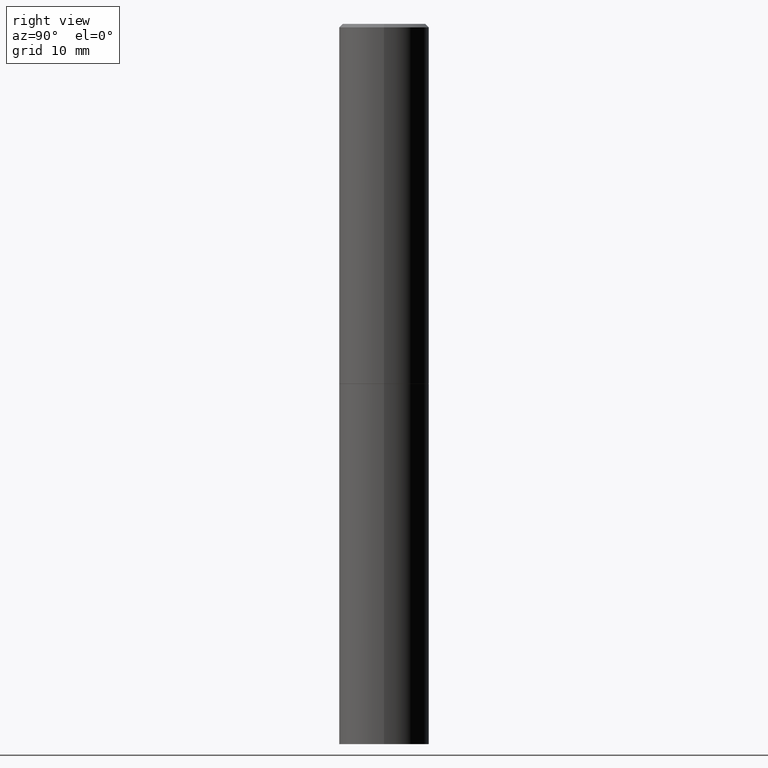
[diagram: clean part render]
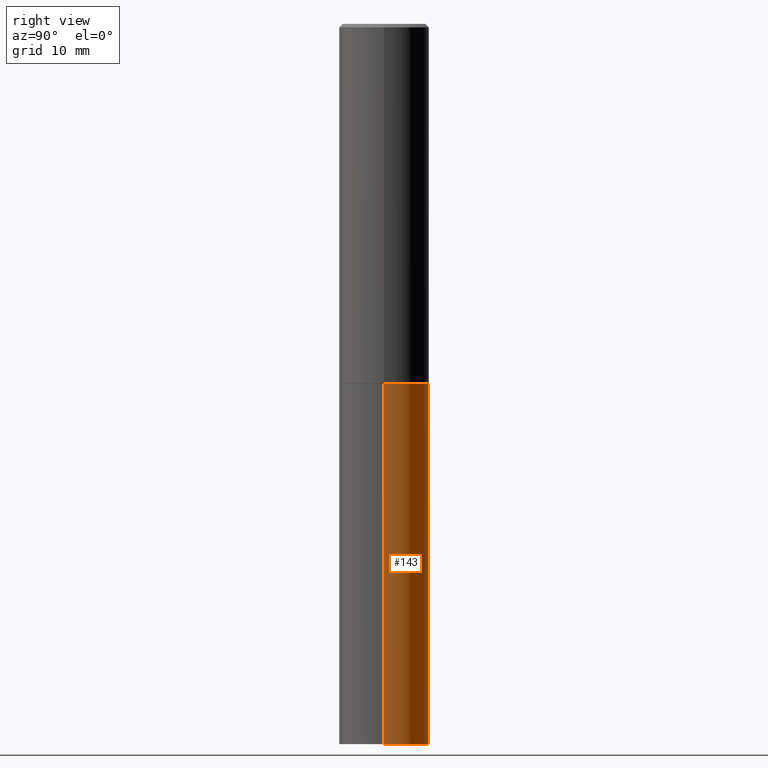
[diagram: same view with one face highlighted and labeled with its STEP entity id]
A machine part, right view. The second image highlights one B-rep face of the part: STEP entity #143.
In plain terms, the highlighted cylindrical surface (partial cylindrical patch) has radius 6.35 mm, axis along (-0, 0, 1).
Its self-contained STEP definition (entity closure, byte-faithful):
#36 = DIRECTION ( 'NONE',  ( 1.000000000000000000, -6.982962677686270655E-15, 0.000000000000000000 ) ) ;
#47 = EDGE_CURVE ( 'NONE', #229, #160, #51, .T. ) ;
#51 = LINE ( 'NONE', #159, #122 ) ;
#61 = LINE ( 'NONE', #210, #140 ) ;
#78 = ORIENTED_EDGE ( 'NONE', *, *, #120, .F. ) ;
#86 = CARTESIAN_POINT ( 'NONE',  ( 9.781875224740546387E-29, -1.396592535537258233E-14, -4.000000000000000000 ) ) ;
#99 = AXIS2_PLACEMENT_3D ( 'NONE', #117, #366, #167 ) ;
#100 = EDGE_LOOP ( 'NONE', ( #351, #235, #78, #152 ) ) ;
#116 = CARTESIAN_POINT ( 'NONE',  ( 0.2500000000000000000, -1.571166602479415059E-14, -4.000000000000000000 ) ) ;
#117 = CARTESIAN_POINT ( 'NONE',  ( 4.890937612370273194E-29, -6.982962677686291165E-15, -2.000000000000000000 ) ) ;
#120 = EDGE_CURVE ( 'NONE', #160, #278, #176, .T. ) ;
#122 = VECTOR ( 'NONE', #259, 39.37007874015748143 ) ;
#132 = EDGE_CURVE ( 'NONE', #229, #346, #230, .T. ) ;
#134 = AXIS2_PLACEMENT_3D ( 'NONE', #86, #276, #36 ) ;
#138 = DIRECTION ( 'NONE',  ( -2.445468806185136597E-29, 3.491481338843145583E-15, 1.000000000000000000 ) ) ;
#140 = VECTOR ( 'NONE', #328, 39.37007874015748143 ) ;
#143 = ADVANCED_FACE ( 'NONE', ( #334 ), #145, .T. ) ;
#145 = CYLINDRICAL_SURFACE ( 'NONE', #265, 0.2500000000000000000 ) ;
#152 = ORIENTED_EDGE ( 'NONE', *, *, #47, .F. ) ;
#159 = CARTESIAN_POINT ( 'NONE',  ( 0.2500000000000000000, -1.745740669421566678E-15, 1.219044193948983948E-29 ) ) ;
#160 = VERTEX_POINT ( 'NONE', #359 ) ;
#167 = DIRECTION ( 'NONE',  ( 1.000000000000000000, -6.982962677686266711E-15, 0.000000000000000000 ) ) ;
#174 = DIRECTION ( 'NONE',  ( 1.000000000000000000, -6.982962677686266711E-15, 4.876176775795935793E-29 ) ) ;
#176 = CIRCLE ( 'NONE', #99, 0.2500000000000000000 ) ;
#196 = CARTESIAN_POINT ( 'NONE',  ( 0.000000000000000000, 0.000000000000000000, 0.000000000000000000 ) ) ;
#210 = CARTESIAN_POINT ( 'NONE',  ( -0.2500000000000000000, 1.776356839400250465E-15, -1.229733772563726445E-29 ) ) ;
#229 = VERTEX_POINT ( 'NONE', #116 ) ;
#230 = CIRCLE ( 'NONE', #134, 0.2500000000000000000 ) ;
#235 = ORIENTED_EDGE ( 'NONE', *, *, #318, .T. ) ;
#242 = CARTESIAN_POINT ( 'NONE',  ( -0.2500000000000000000, -8.698087177129185889E-15, -2.000000000000000000 ) ) ;
#259 = DIRECTION ( 'NONE',  ( -2.445468806185136877E-29, 3.491481338843145188E-15, 1.000000000000000000 ) ) ;
#265 = AXIS2_PLACEMENT_3D ( 'NONE', #196, #138, #174 ) ;
#276 = DIRECTION ( 'NONE',  ( -2.445468806185136597E-29, 3.491481338843145583E-15, 1.000000000000000000 ) ) ;
#278 = VERTEX_POINT ( 'NONE', #242 ) ;
#280 = CARTESIAN_POINT ( 'NONE',  ( -0.2500000000000000000, -8.698087177129185889E-15, -4.000000000000000000 ) ) ;
#318 = EDGE_CURVE ( 'NONE', #346, #278, #61, .T. ) ;
#328 = DIRECTION ( 'NONE',  ( -2.445468806185136877E-29, 3.491481338843145188E-15, 1.000000000000000000 ) ) ;
#334 = FACE_OUTER_BOUND ( 'NONE', #100, .T. ) ;
#346 = VERTEX_POINT ( 'NONE', #280 ) ;
#351 = ORIENTED_EDGE ( 'NONE', *, *, #132, .T. ) ;
#359 = CARTESIAN_POINT ( 'NONE',  ( 0.2500000000000000000, -8.728703347107857054E-15, -2.000000000000000000 ) ) ;
#366 = DIRECTION ( 'NONE',  ( -2.445468806185136597E-29, 3.491481338843145583E-15, 1.000000000000000000 ) ) ;